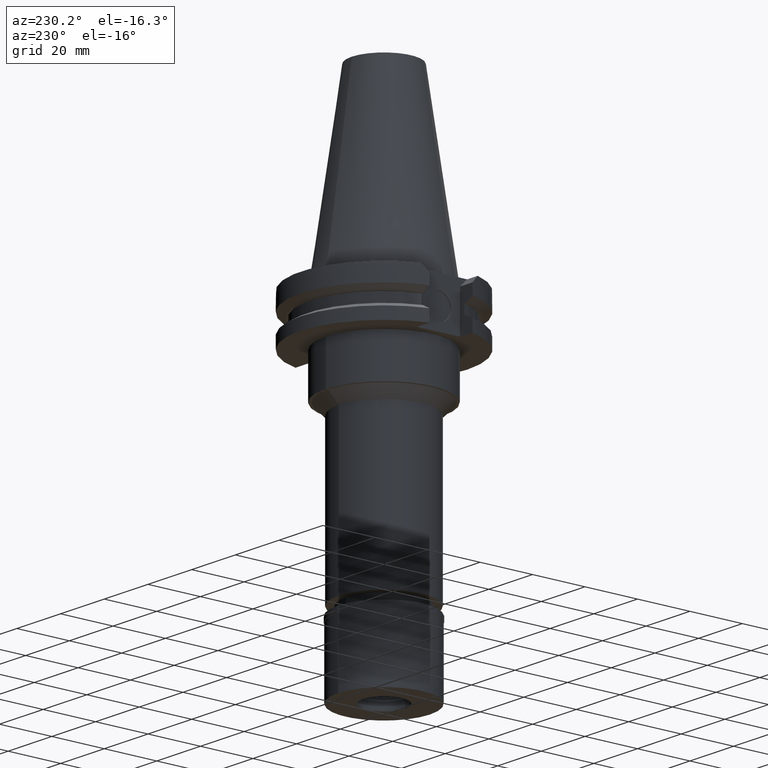
[diagram: clean part render]
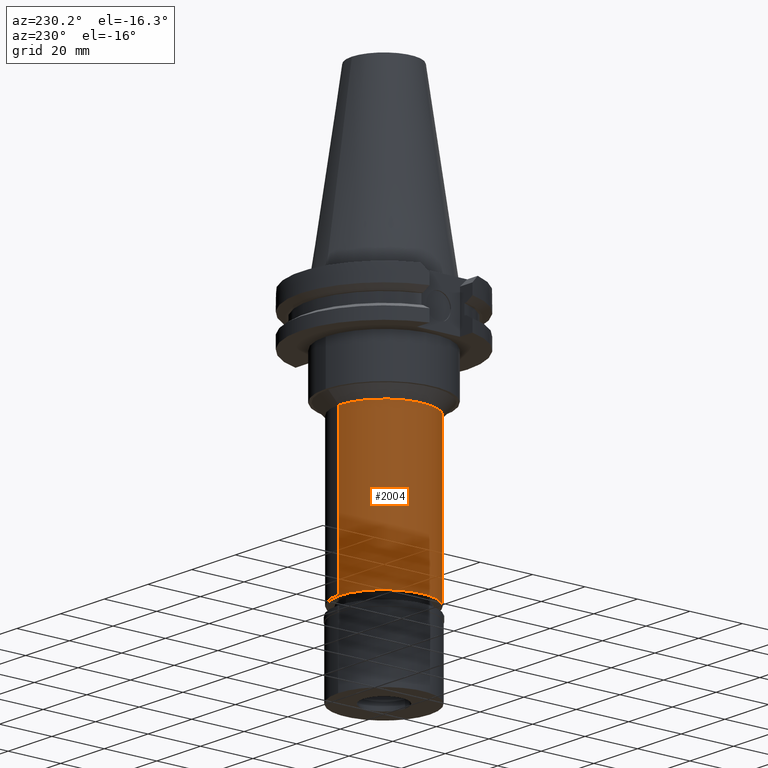
[diagram: same view with one face highlighted and labeled with its STEP entity id]
A machine part, auxiliary view. The second image highlights one B-rep face of the part: STEP entity #2004.
In plain terms, the highlighted cylindrical surface (partial cylindrical patch) has radius 17.25 mm, axis along (0, 0, -1).
Its self-contained STEP definition (entity closure, byte-faithful):
#54 = ORIENTED_EDGE ( 'NONE', *, *, #1897, .F. ) ;
#58 = VERTEX_POINT ( 'NONE', #2870 ) ;
#100 = EDGE_CURVE ( 'NONE', #2118, #58, #1991, .T. ) ;
#114 = ORIENTED_EDGE ( 'NONE', *, *, #126, .T. ) ;
#126 = EDGE_CURVE ( 'NONE', #58, #2146, #1148, .T. ) ;
#315 = DIRECTION ( 'NONE',  ( 0.0000000000000000000, -1.000000000000000000, 0.0000000000000000000 ) ) ;
#517 = AXIS2_PLACEMENT_3D ( 'NONE', #2512, #2211, #2728 ) ;
#528 = CARTESIAN_POINT ( 'NONE',  ( 0.0000000000000000000, -17.25000000000000000, -97.19999999999998863 ) ) ;
#567 = VECTOR ( 'NONE', #2231, 1000.000000000000000 ) ;
#751 = CARTESIAN_POINT ( 'NONE',  ( 0.0000000000000000000, 17.25000000000000000, -39.00000000000000000 ) ) ;
#908 = CARTESIAN_POINT ( 'NONE',  ( 0.0000000000000000000, -17.25000000000000000, -39.00000000000000000 ) ) ;
#953 = AXIS2_PLACEMENT_3D ( 'NONE', #1093, #1857, #315 ) ;
#1093 = CARTESIAN_POINT ( 'NONE',  ( 0.0000000000000000000, 0.0000000000000000000, -39.00000000000000000 ) ) ;
#1148 = CIRCLE ( 'NONE', #517, 17.25000000000000000 ) ;
#1304 = ORIENTED_EDGE ( 'NONE', *, *, #100, .T. ) ;
#1472 = CARTESIAN_POINT ( 'NONE',  ( 0.0000000000000000000, -17.25000000000000000, -39.00000000000000000 ) ) ;
#1555 = ORIENTED_EDGE ( 'NONE', *, *, #2774, .T. ) ;
#1568 = FACE_OUTER_BOUND ( 'NONE', #2432, .T. ) ;
#1743 = DIRECTION ( 'NONE',  ( 0.0000000000000000000, 0.0000000000000000000, -1.000000000000000000 ) ) ;
#1857 = DIRECTION ( 'NONE',  ( 0.0000000000000000000, 0.0000000000000000000, -1.000000000000000000 ) ) ;
#1897 = EDGE_CURVE ( 'NONE', #2902, #2146, #2191, .T. ) ;
#1991 = LINE ( 'NONE', #2265, #567 ) ;
#2000 = CYLINDRICAL_SURFACE ( 'NONE', #2616, 17.25000000000000000 ) ;
#2004 = ADVANCED_FACE ( 'NONE', ( #1568 ), #2000, .T. ) ;
#2118 = VERTEX_POINT ( 'NONE', #751 ) ;
#2146 = VERTEX_POINT ( 'NONE', #528 ) ;
#2191 = LINE ( 'NONE', #1472, #2989 ) ;
#2211 = DIRECTION ( 'NONE',  ( 0.0000000000000000000, 0.0000000000000000000, 1.000000000000000000 ) ) ;
#2231 = DIRECTION ( 'NONE',  ( 0.0000000000000000000, 0.0000000000000000000, -1.000000000000000000 ) ) ;
#2236 = CIRCLE ( 'NONE', #953, 17.25000000000000000 ) ;
#2265 = CARTESIAN_POINT ( 'NONE',  ( 0.0000000000000000000, 17.25000000000000000, -39.00000000000000000 ) ) ;
#2310 = DIRECTION ( 'NONE',  ( 0.0000000000000000000, 0.0000000000000000000, -1.000000000000000000 ) ) ;
#2432 = EDGE_LOOP ( 'NONE', ( #114, #54, #1555, #1304 ) ) ;
#2512 = CARTESIAN_POINT ( 'NONE',  ( 0.0000000000000000000, 0.0000000000000000000, -97.19999999999998863 ) ) ;
#2616 = AXIS2_PLACEMENT_3D ( 'NONE', #2851, #2310, #2806 ) ;
#2728 = DIRECTION ( 'NONE',  ( 0.0000000000000000000, 1.000000000000000000, 0.0000000000000000000 ) ) ;
#2774 = EDGE_CURVE ( 'NONE', #2902, #2118, #2236, .T. ) ;
#2806 = DIRECTION ( 'NONE',  ( 0.0000000000000000000, -1.000000000000000000, 0.0000000000000000000 ) ) ;
#2851 = CARTESIAN_POINT ( 'NONE',  ( 0.0000000000000000000, 0.0000000000000000000, 77.46250000000000568 ) ) ;
#2870 = CARTESIAN_POINT ( 'NONE',  ( 0.0000000000000000000, 17.25000000000000000, -97.19999999999998863 ) ) ;
#2902 = VERTEX_POINT ( 'NONE', #908 ) ;
#2989 = VECTOR ( 'NONE', #1743, 1000.000000000000000 ) ;